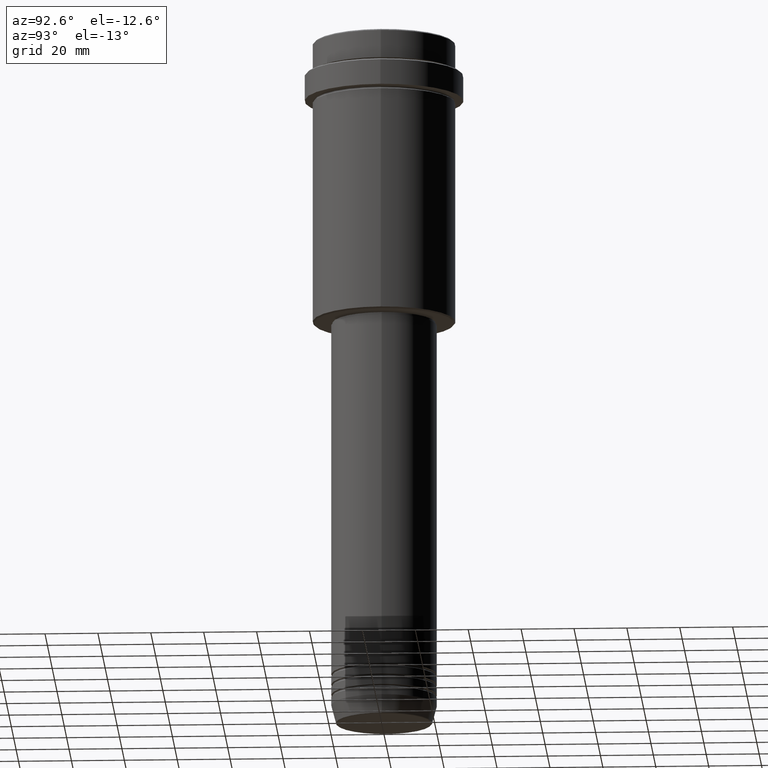
[diagram: clean part render]
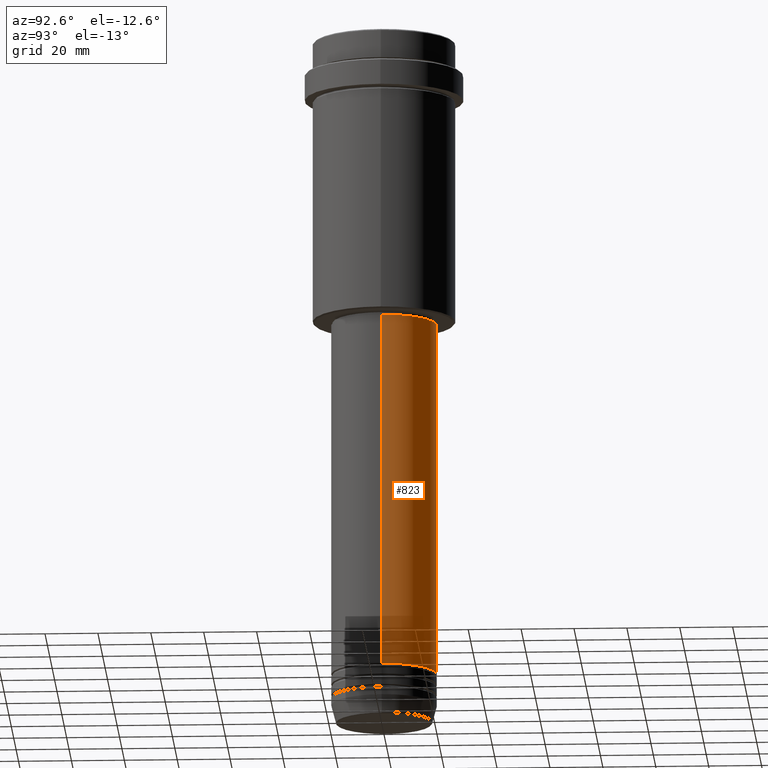
[diagram: same view with one face highlighted and labeled with its STEP entity id]
A machine part, auxiliary view. The second image highlights one B-rep face of the part: STEP entity #823.
In plain terms, the highlighted cylindrical surface (partial cylindrical patch) has radius 20 mm, axis along (-0, -0, 1).
Its self-contained STEP definition (entity closure, byte-faithful):
#55 = VECTOR ( 'NONE', #611, 1000.000000000000000 ) ;
#78 = LINE ( 'NONE', #850, #1380 ) ;
#86 = EDGE_CURVE ( 'NONE', #848, #877, #1363, .T. ) ;
#103 = CARTESIAN_POINT ( 'NONE',  ( 0.000000000000000000, 0.000000000000000000, 0.000000000000000000 ) ) ;
#198 = CARTESIAN_POINT ( 'NONE',  ( -20.00000000000000000, 2.449293598294706513E-15, -243.9999999999998863 ) ) ;
#207 = CARTESIAN_POINT ( 'NONE',  ( 20.00000000000000000, 0.000000000000000000, -243.9999999999998863 ) ) ;
#277 = CIRCLE ( 'NONE', #1078, 20.00000000000000000 ) ;
#308 = CARTESIAN_POINT ( 'NONE',  ( 0.000000000000000000, 0.000000000000000000, -243.9999999999998863 ) ) ;
#315 = DIRECTION ( 'NONE',  ( 1.000000000000000000, 0.000000000000000000, 0.000000000000000000 ) ) ;
#317 = EDGE_CURVE ( 'NONE', #877, #711, #989, .T. ) ;
#356 = ORIENTED_EDGE ( 'NONE', *, *, #1150, .T. ) ;
#424 = DIRECTION ( 'NONE',  ( -0.000000000000000000, -0.000000000000000000, 1.000000000000000000 ) ) ;
#431 = CARTESIAN_POINT ( 'NONE',  ( 19.99999999999999645, 0.000000000000000000, -109.0000000000000142 ) ) ;
#442 = AXIS2_PLACEMENT_3D ( 'NONE', #103, #424, #315 ) ;
#495 = CARTESIAN_POINT ( 'NONE',  ( -19.99999999999999645, 2.449293598294706119E-15, -109.0000000000000142 ) ) ;
#611 = DIRECTION ( 'NONE',  ( -0.000000000000000000, -0.000000000000000000, 1.000000000000000000 ) ) ;
#624 = DIRECTION ( 'NONE',  ( -0.000000000000000000, -0.000000000000000000, 1.000000000000000000 ) ) ;
#711 = VERTEX_POINT ( 'NONE', #495 ) ;
#715 = DIRECTION ( 'NONE',  ( 1.000000000000000000, 0.000000000000000000, 0.000000000000000000 ) ) ;
#797 = EDGE_CURVE ( 'NONE', #848, #914, #277, .T. ) ;
#823 = ADVANCED_FACE ( 'NONE', ( #1184 ), #1285, .T. ) ;
#848 = VERTEX_POINT ( 'NONE', #207 ) ;
#850 = CARTESIAN_POINT ( 'NONE',  ( -19.99999999999999645, 2.449293598294706119E-15, 0.000000000000000000 ) ) ;
#877 = VERTEX_POINT ( 'NONE', #431 ) ;
#914 = VERTEX_POINT ( 'NONE', #198 ) ;
#940 = DIRECTION ( 'NONE',  ( 1.000000000000000000, 0.000000000000000000, 0.000000000000000000 ) ) ;
#942 = CARTESIAN_POINT ( 'NONE',  ( 19.99999999999999645, 0.000000000000000000, 0.000000000000000000 ) ) ;
#946 = DIRECTION ( 'NONE',  ( -0.000000000000000000, -0.000000000000000000, 1.000000000000000000 ) ) ;
#975 = ORIENTED_EDGE ( 'NONE', *, *, #317, .F. ) ;
#989 = CIRCLE ( 'NONE', #1243, 19.99999999999999645 ) ;
#1078 = AXIS2_PLACEMENT_3D ( 'NONE', #308, #1398, #940 ) ;
#1150 = EDGE_CURVE ( 'NONE', #914, #711, #78, .T. ) ;
#1184 = FACE_OUTER_BOUND ( 'NONE', #1206, .T. ) ;
#1206 = EDGE_LOOP ( 'NONE', ( #1414, #356, #975, #1225 ) ) ;
#1225 = ORIENTED_EDGE ( 'NONE', *, *, #86, .F. ) ;
#1243 = AXIS2_PLACEMENT_3D ( 'NONE', #1269, #624, #715 ) ;
#1269 = CARTESIAN_POINT ( 'NONE',  ( 0.000000000000000000, 0.000000000000000000, -109.0000000000000142 ) ) ;
#1285 = CYLINDRICAL_SURFACE ( 'NONE', #442, 19.99999999999999645 ) ;
#1363 = LINE ( 'NONE', #942, #55 ) ;
#1380 = VECTOR ( 'NONE', #946, 1000.000000000000000 ) ;
#1398 = DIRECTION ( 'NONE',  ( -0.000000000000000000, -0.000000000000000000, 1.000000000000000000 ) ) ;
#1414 = ORIENTED_EDGE ( 'NONE', *, *, #797, .T. ) ;